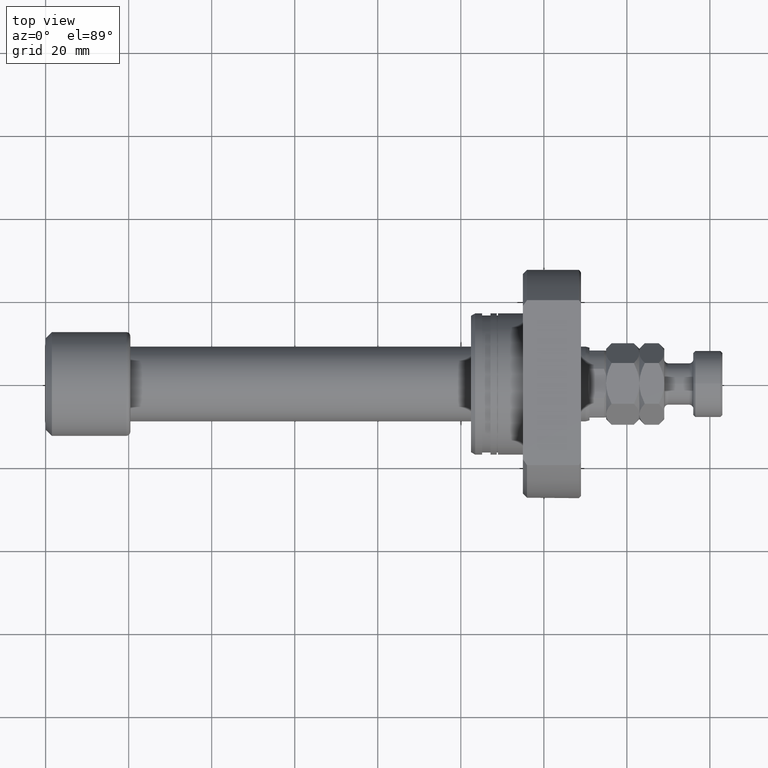
[diagram: clean part render]
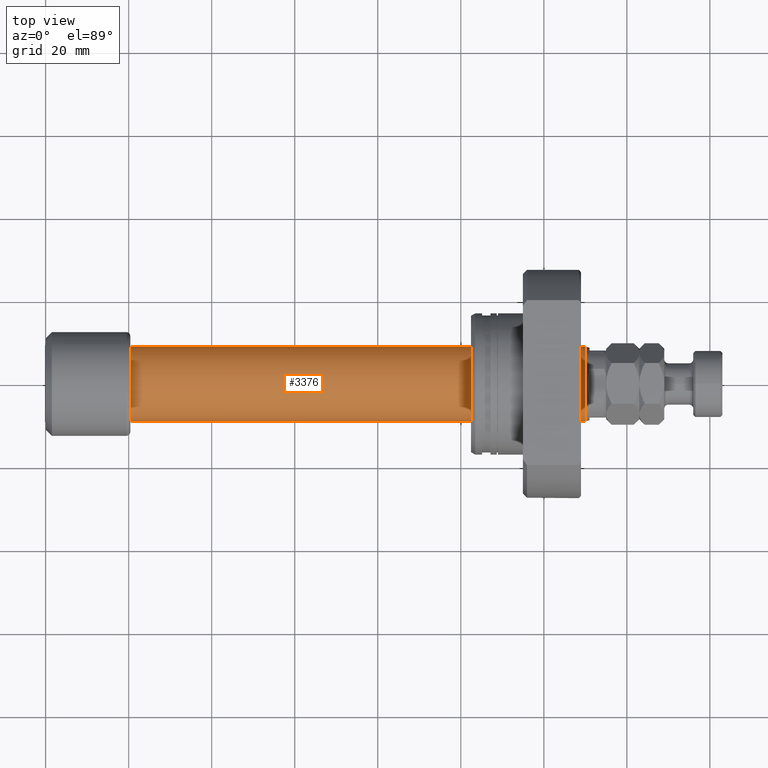
[diagram: same view with one face highlighted and labeled with its STEP entity id]
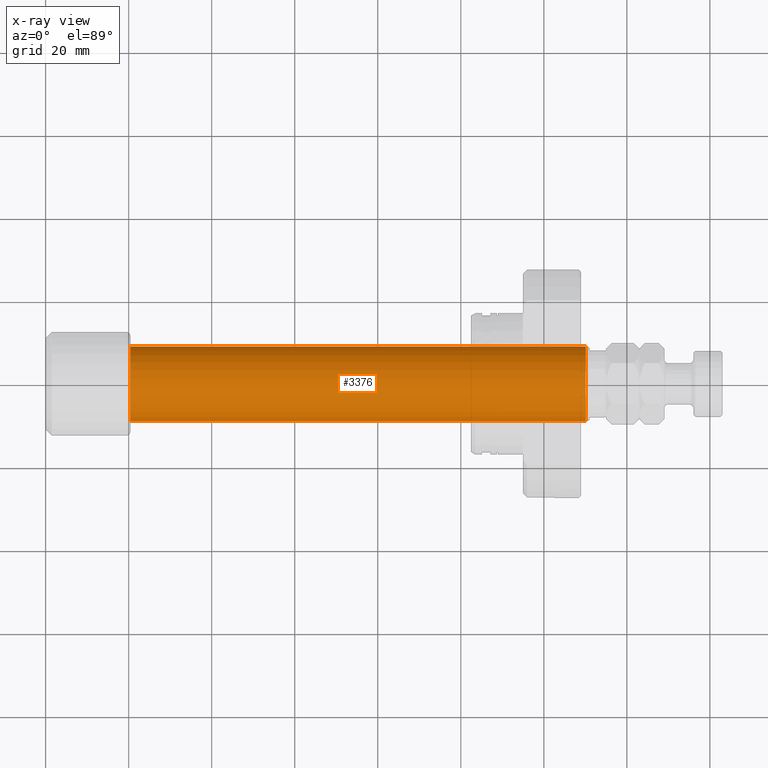
[diagram: x-ray of the same camera — body ghosted, the highlighted face saturated]
A machine part, top view. The second image highlights one B-rep face of the part: STEP entity #3376.
The next image is the same camera in x-ray: the body ghosted, the highlighted face saturated — about 0% of this face is hidden behind the body in this view.
In plain terms, the highlighted cylindrical surface (partial cylindrical patch) has radius 9 mm, axis along (-1, -0, -0).
Its self-contained STEP definition (entity closure, byte-faithful):
#158 = CARTESIAN_POINT ( 'NONE',  ( 20.39999999999999503, 9.000000000000000000, 1.102182119232623630E-15 ) ) ;
#271 = LINE ( 'NONE', #3281, #690 ) ;
#366 = EDGE_CURVE ( 'NONE', #3815, #3012, #4549, .T. ) ;
#368 = LINE ( 'NONE', #1128, #4448 ) ;
#394 = DIRECTION ( 'NONE',  ( -1.000000000000000000, -1.069542322069065801E-17, -0.000000000000000000 ) ) ;
#403 = CARTESIAN_POINT ( 'NONE',  ( 130.0667575123237611, 9.000000000000195399, 1.102182119232641774E-15 ) ) ;
#663 = CARTESIAN_POINT ( 'NONE',  ( 130.0667575123237611, 1.391119018537248741E-15, 0.000000000000000000 ) ) ;
#690 = VECTOR ( 'NONE', #4453, 1000.000000000000000 ) ;
#905 = DIRECTION ( 'NONE',  ( -1.000000000000000000, -1.069542322069065801E-17, -0.000000000000000000 ) ) ;
#1128 = CARTESIAN_POINT ( 'NONE',  ( -9.625880898621698056E-17, 9.000000000000097700, 1.102182119232629941E-15 ) ) ;
#1133 = VERTEX_POINT ( 'NONE', #2903 ) ;
#1285 = EDGE_CURVE ( 'NONE', #1133, #3988, #3073, .T. ) ;
#1465 = AXIS2_PLACEMENT_3D ( 'NONE', #3419, #394, #4476 ) ;
#1512 = ORIENTED_EDGE ( 'NONE', *, *, #1285, .F. ) ;
#1543 = CARTESIAN_POINT ( 'NONE',  ( 20.39999999999999503, 2.181866337020893623E-16, 0.000000000000000000 ) ) ;
#1683 = ORIENTED_EDGE ( 'NONE', *, *, #3379, .T. ) ;
#2036 = DIRECTION ( 'NONE',  ( 0.000000000000000000, -1.000000000000000000, 0.000000000000000000 ) ) ;
#2104 = ORIENTED_EDGE ( 'NONE', *, *, #4555, .F. ) ;
#2194 = EDGE_LOOP ( 'NONE', ( #2879, #1683, #1512, #2104 ) ) ;
#2249 = CARTESIAN_POINT ( 'NONE',  ( 130.0667575123237611, -9.000000000000193623, 0.000000000000000000 ) ) ;
#2631 = DIRECTION ( 'NONE',  ( -1.000000000000000000, -1.069542322069065801E-17, -0.000000000000000000 ) ) ;
#2879 = ORIENTED_EDGE ( 'NONE', *, *, #366, .T. ) ;
#2890 = CYLINDRICAL_SURFACE ( 'NONE', #1465, 9.000000000000097700 ) ;
#2903 = CARTESIAN_POINT ( 'NONE',  ( 20.39999999999999503, -9.000000000000000000, 0.000000000000000000 ) ) ;
#2922 = AXIS2_PLACEMENT_3D ( 'NONE', #663, #2631, #2944 ) ;
#2944 = DIRECTION ( 'NONE',  ( 0.000000000000000000, -1.000000000000000000, 0.000000000000000000 ) ) ;
#3012 = VERTEX_POINT ( 'NONE', #403 ) ;
#3073 = CIRCLE ( 'NONE', #3229, 9.000000000000000000 ) ;
#3229 = AXIS2_PLACEMENT_3D ( 'NONE', #1543, #905, #2036 ) ;
#3281 = CARTESIAN_POINT ( 'NONE',  ( 9.625880898621698056E-17, -9.000000000000097700, 0.000000000000000000 ) ) ;
#3376 = ADVANCED_FACE ( 'NONE', ( #3737 ), #2890, .T. ) ;
#3379 = EDGE_CURVE ( 'NONE', #3012, #3988, #368, .T. ) ;
#3419 = CARTESIAN_POINT ( 'NONE',  ( 0.000000000000000000, 0.000000000000000000, 0.000000000000000000 ) ) ;
#3737 = FACE_OUTER_BOUND ( 'NONE', #2194, .T. ) ;
#3815 = VERTEX_POINT ( 'NONE', #2249 ) ;
#3988 = VERTEX_POINT ( 'NONE', #158 ) ;
#4012 = DIRECTION ( 'NONE',  ( -1.000000000000000000, -1.069542322069065801E-17, -0.000000000000000000 ) ) ;
#4448 = VECTOR ( 'NONE', #4012, 1000.000000000000000 ) ;
#4453 = DIRECTION ( 'NONE',  ( -1.000000000000000000, -1.069542322069065801E-17, -0.000000000000000000 ) ) ;
#4476 = DIRECTION ( 'NONE',  ( 1.069542322069065955E-17, -1.000000000000000000, 0.000000000000000000 ) ) ;
#4549 = CIRCLE ( 'NONE', #2922, 9.000000000000195399 ) ;
#4555 = EDGE_CURVE ( 'NONE', #3815, #1133, #271, .T. ) ;